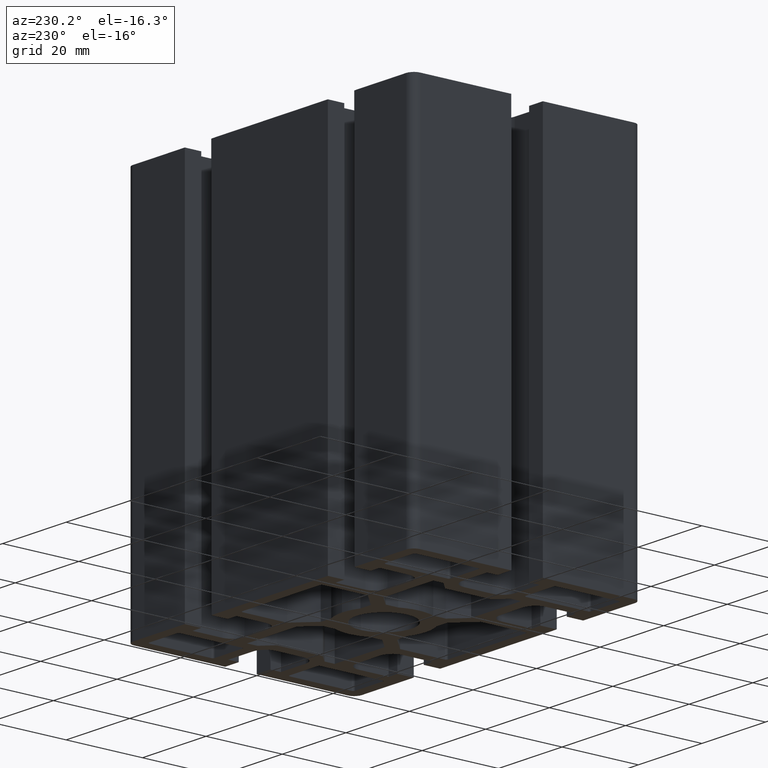
[diagram: clean part render]
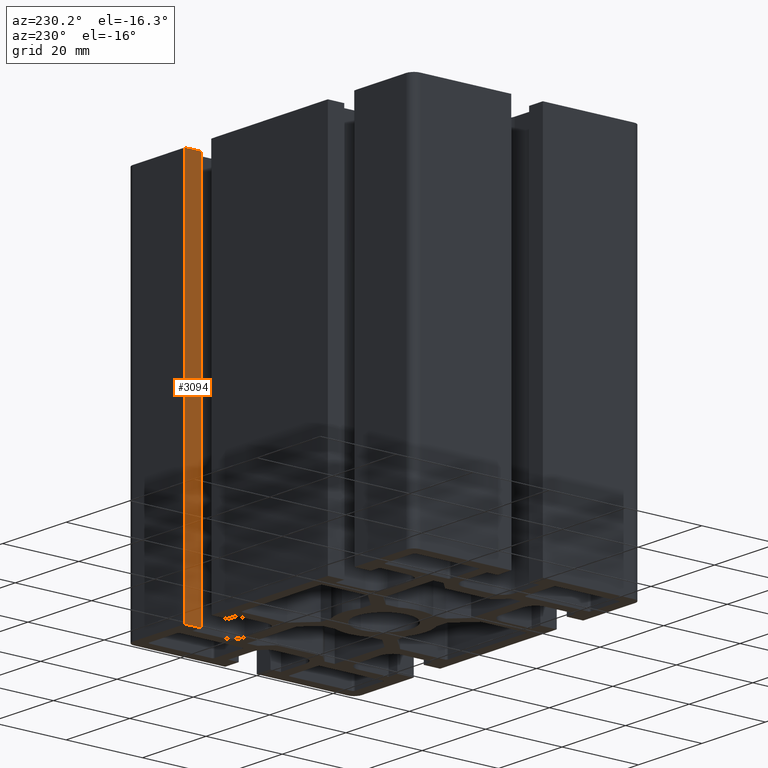
[diagram: same view with one face highlighted and labeled with its STEP entity id]
A machine part, auxiliary view. The second image highlights one B-rep face of the part: STEP entity #3094.
In plain terms, the highlighted planar face has unit normal (-1, 0, 0).
Its self-contained STEP definition (entity closure, byte-faithful):
#135=PLANE('',#3337);
#286=FACE_OUTER_BOUND('',#437,.T.);
#437=EDGE_LOOP('',(#2596,#2597,#2598,#2599));
#810=LINE('',#5067,#1167);
#811=LINE('',#5070,#1168);
#812=LINE('',#5072,#1169);
#813=LINE('',#5073,#1170);
#1167=VECTOR('',#4168,100.);
#1168=VECTOR('',#4171,4.29999999999971);
#1169=VECTOR('',#4172,4.29999999999971);
#1170=VECTOR('',#4173,100.);
#1557=VERTEX_POINT('',#5063);
#1558=VERTEX_POINT('',#5065);
#1559=VERTEX_POINT('',#5069);
#1560=VERTEX_POINT('',#5071);
#2002=EDGE_CURVE('',#1557,#1558,#810,.T.);
#2003=EDGE_CURVE('',#1559,#1557,#811,.T.);
#2004=EDGE_CURVE('',#1560,#1558,#812,.T.);
#2005=EDGE_CURVE('',#1559,#1560,#813,.T.);
#2596=ORIENTED_EDGE('',*,*,#2003,.T.);
#2597=ORIENTED_EDGE('',*,*,#2002,.T.);
#2598=ORIENTED_EDGE('',*,*,#2004,.F.);
#2599=ORIENTED_EDGE('',*,*,#2005,.F.);
#3094=ADVANCED_FACE('',(#286),#135,.T.);
#3337=AXIS2_PLACEMENT_3D('',#5068,#4169,#4170);
#4168=DIRECTION('',(0.,0.,1.));
#4169=DIRECTION('center_axis',(-1.,0.,0.));
#4170=DIRECTION('ref_axis',(0.,-1.,0.));
#4171=DIRECTION('',(0.,-1.,0.));
#4172=DIRECTION('',(0.,-1.,0.));
#4173=DIRECTION('',(0.,0.,1.));
#5063=CARTESIAN_POINT('',(26.6500000000005,25.699999999996,0.));
#5065=CARTESIAN_POINT('',(26.6500000000005,25.699999999996,100.));
#5067=CARTESIAN_POINT('',(26.6500000000005,25.699999999996,0.));
#5068=CARTESIAN_POINT('Origin',(26.6500000000005,29.9999999999958,0.));
#5069=CARTESIAN_POINT('',(26.6500000000005,29.9999999999958,0.));
#5070=CARTESIAN_POINT('',(26.6500000000005,29.9999999999958,0.));
#5071=CARTESIAN_POINT('',(26.6500000000005,29.9999999999958,100.));
#5072=CARTESIAN_POINT('',(26.6500000000005,29.9999999999958,100.));
#5073=CARTESIAN_POINT('',(26.6500000000005,29.9999999999958,0.));